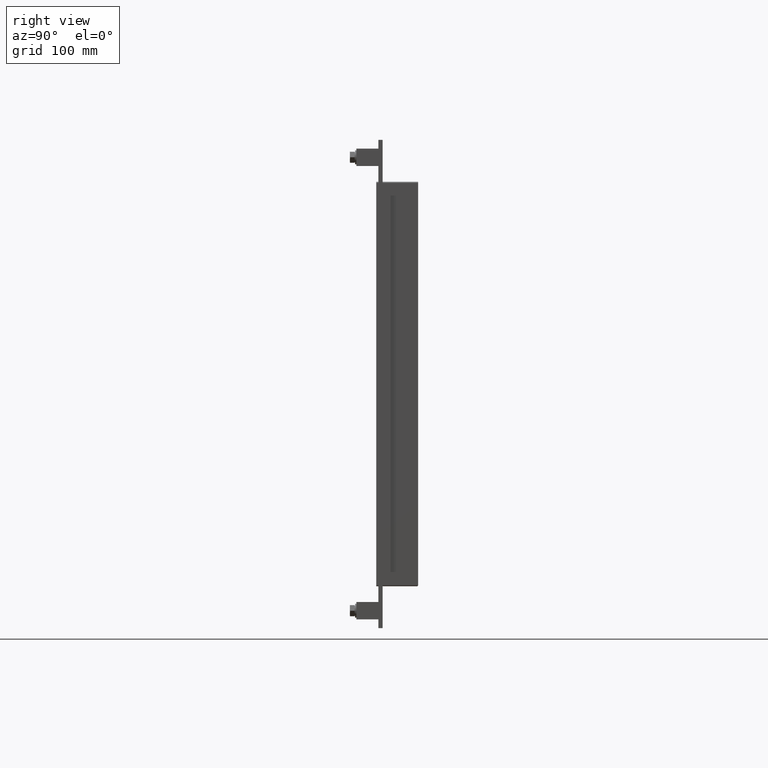
[diagram: clean part render]
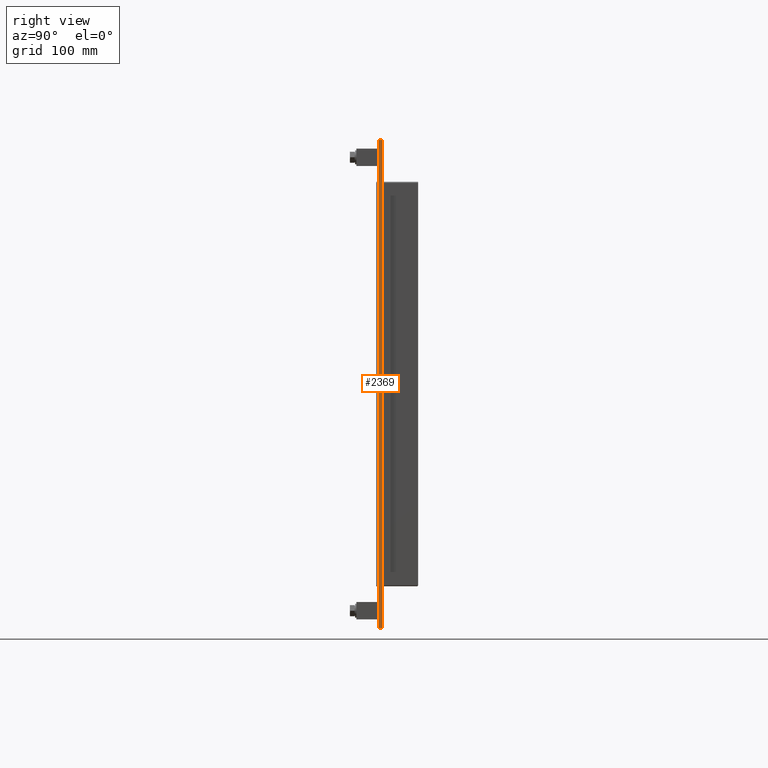
[diagram: same view with one face highlighted and labeled with its STEP entity id]
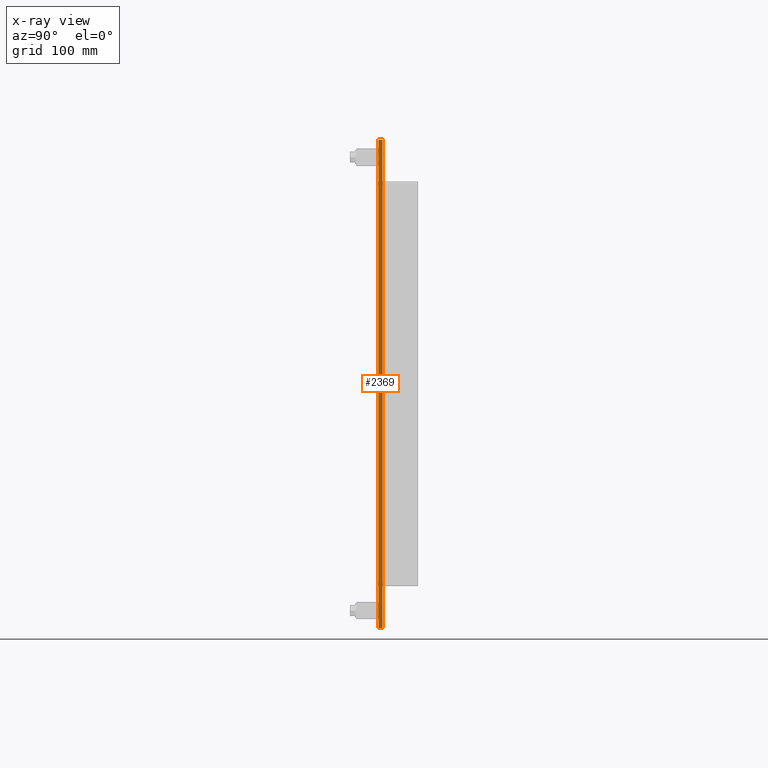
[diagram: x-ray of the same camera — body ghosted, the highlighted face saturated]
A machine part, right view. The second image highlights one B-rep face of the part: STEP entity #2369.
The next image is the same camera in x-ray: the body ghosted, the highlighted face saturated — about 0% of this face is hidden behind the body in this view.
In plain terms, the highlighted planar face has unit normal (1, 0, 0).
Its self-contained STEP definition (entity closure, byte-faithful):
#2005=CARTESIAN_POINT('',(387.25000000000023,6.000000000000001,349.99999999999994));
#2006=VERTEX_POINT('',#2005);
#2013=CARTESIAN_POINT('',(387.25000000000023,6.000000000000001,-349.99999999999994));
#2014=VERTEX_POINT('',#2013);
#2015=CARTESIAN_POINT('',(387.25000000000017,6.000000000000001,349.99999999999994));
#2016=DIRECTION('',(0.0,0.0,-1.0));
#2017=VECTOR('',#2016,699.99999999999989);
#2018=LINE('',#2015,#2017);
#2019=EDGE_CURVE('',#2006,#2014,#2018,.T.);
#2163=CARTESIAN_POINT('',(387.25000000000017,0.0,349.99999999999994));
#2164=VERTEX_POINT('',#2163);
#2179=CARTESIAN_POINT('',(387.25000000000017,0.0,-349.99999999999994));
#2180=VERTEX_POINT('',#2179);
#2187=CARTESIAN_POINT('',(387.25000000000017,0.0,349.99999999999994));
#2188=DIRECTION('',(0.0,0.0,-1.0));
#2189=VECTOR('',#2188,699.99999999999989);
#2190=LINE('',#2187,#2189);
#2191=EDGE_CURVE('',#2164,#2180,#2190,.T.);
#2344=CARTESIAN_POINT('',(387.25000000000017,0.0,-349.99999999999994));
#2345=DIRECTION('',(0.0,1.0,0.0));
#2346=VECTOR('',#2345,6.000000000000001);
#2347=LINE('',#2344,#2346);
#2348=EDGE_CURVE('',#2180,#2014,#2347,.T.);
#2353=CARTESIAN_POINT('',(387.25000000000017,0.0,349.99999999999994));
#2354=DIRECTION('',(1.0,0.0,0.0));
#2355=DIRECTION('',(0.0,0.0,-1.0));
#2356=AXIS2_PLACEMENT_3D('',#2353,#2354,#2355);
#2357=PLANE('',#2356);
#2358=ORIENTED_EDGE('',*,*,#2191,.T.);
#2359=ORIENTED_EDGE('',*,*,#2348,.T.);
#2360=ORIENTED_EDGE('',*,*,#2019,.F.);
#2361=CARTESIAN_POINT('',(387.25000000000017,0.0,349.99999999999994));
#2362=DIRECTION('',(0.0,1.0,0.0));
#2363=VECTOR('',#2362,6.000000000000001);
#2364=LINE('',#2361,#2363);
#2365=EDGE_CURVE('',#2164,#2006,#2364,.T.);
#2366=ORIENTED_EDGE('',*,*,#2365,.F.);
#2367=EDGE_LOOP('',(#2358,#2359,#2360,#2366));
#2368=FACE_OUTER_BOUND('',#2367,.T.);
#2369=ADVANCED_FACE('',(#2368),#2357,.T.);